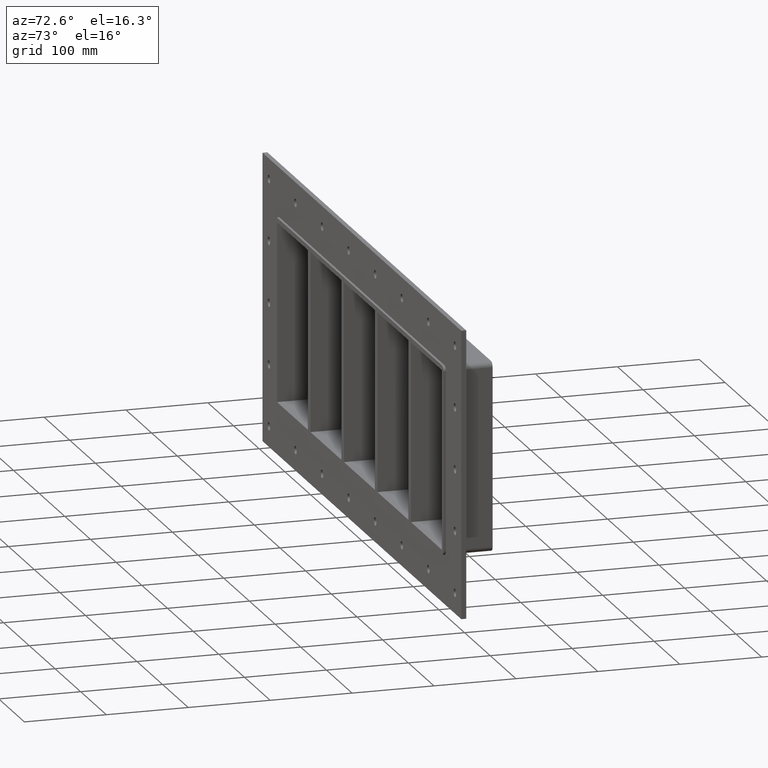
[diagram: clean part render]
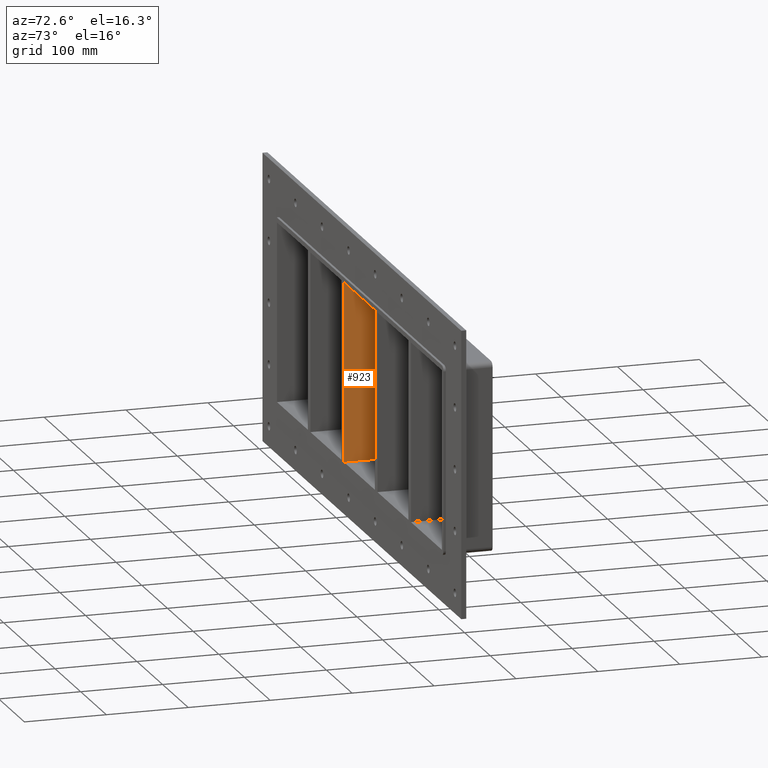
[diagram: same view with one face highlighted and labeled with its STEP entity id]
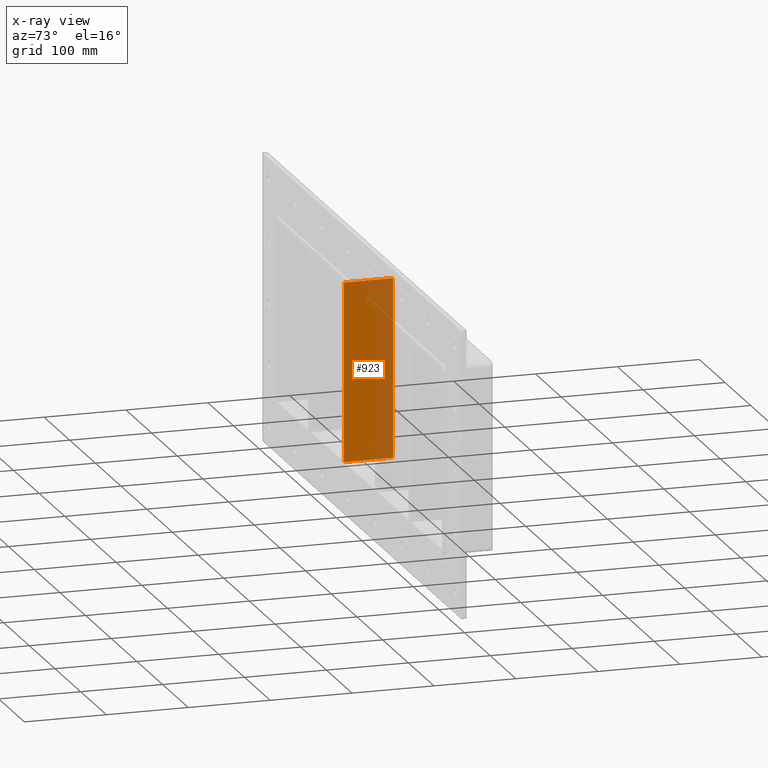
[diagram: x-ray of the same camera — body ghosted, the highlighted face saturated]
A machine part, auxiliary view. The second image highlights one B-rep face of the part: STEP entity #923.
The next image is the same camera in x-ray: the body ghosted, the highlighted face saturated — about 39% of this face is hidden behind the body in this view.
In plain terms, the highlighted planar face has unit normal (1, 0, 0).
Its self-contained STEP definition (entity closure, byte-faithful):
#884=CARTESIAN_POINT('',(-60.250000000007269,-3.0,109.00000000000003));
#885=DIRECTION('',(1.0,0.0,0.0));
#886=DIRECTION('',(0.0,0.0,-1.0));
#887=AXIS2_PLACEMENT_3D('',#884,#885,#886);
#888=PLANE('',#887);
#889=CARTESIAN_POINT('',(-60.250000000007269,-3.0,109.00000000000003));
#890=VERTEX_POINT('',#889);
#891=CARTESIAN_POINT('',(-60.250000000007269,-3.0,-108.99999999998175));
#892=VERTEX_POINT('',#891);
#893=CARTESIAN_POINT('',(-60.250000000007269,-3.0,109.00000000000003));
#894=DIRECTION('',(0.0,0.0,-1.0));
#895=VECTOR('',#894,217.99999999998178);
#896=LINE('',#893,#895);
#897=EDGE_CURVE('',#890,#892,#896,.T.);
#898=ORIENTED_EDGE('',*,*,#897,.T.);
#899=CARTESIAN_POINT('',(-60.250000000007269,57.0,-108.99999999998175));
#900=VERTEX_POINT('',#899);
#901=CARTESIAN_POINT('',(-60.25000000000729,57.000000000000007,-108.99999999999999));
#902=DIRECTION('',(0.0,-1.0,0.0));
#903=VECTOR('',#902,60.000000000000007);
#904=LINE('',#901,#903);
#905=EDGE_CURVE('',#900,#892,#904,.T.);
#906=ORIENTED_EDGE('',*,*,#905,.F.);
#907=CARTESIAN_POINT('',(-60.250000000007269,57.0,109.00000000000003));
#908=VERTEX_POINT('',#907);
#909=CARTESIAN_POINT('',(-60.250000000007269,57.0,109.00000000000003));
#910=DIRECTION('',(0.0,0.0,-1.0));
#911=VECTOR('',#910,217.99999999998178);
#912=LINE('',#909,#911);
#913=EDGE_CURVE('',#908,#900,#912,.T.);
#914=ORIENTED_EDGE('',*,*,#913,.F.);
#915=CARTESIAN_POINT('',(-60.25000000000729,-3.0,109.00000000000003));
#916=DIRECTION('',(0.0,1.0,0.0));
#917=VECTOR('',#916,60.000000000000007);
#918=LINE('',#915,#917);
#919=EDGE_CURVE('',#890,#908,#918,.T.);
#920=ORIENTED_EDGE('',*,*,#919,.F.);
#921=EDGE_LOOP('',(#898,#906,#914,#920));
#922=FACE_OUTER_BOUND('',#921,.T.);
#923=ADVANCED_FACE('',(#922),#888,.T.);